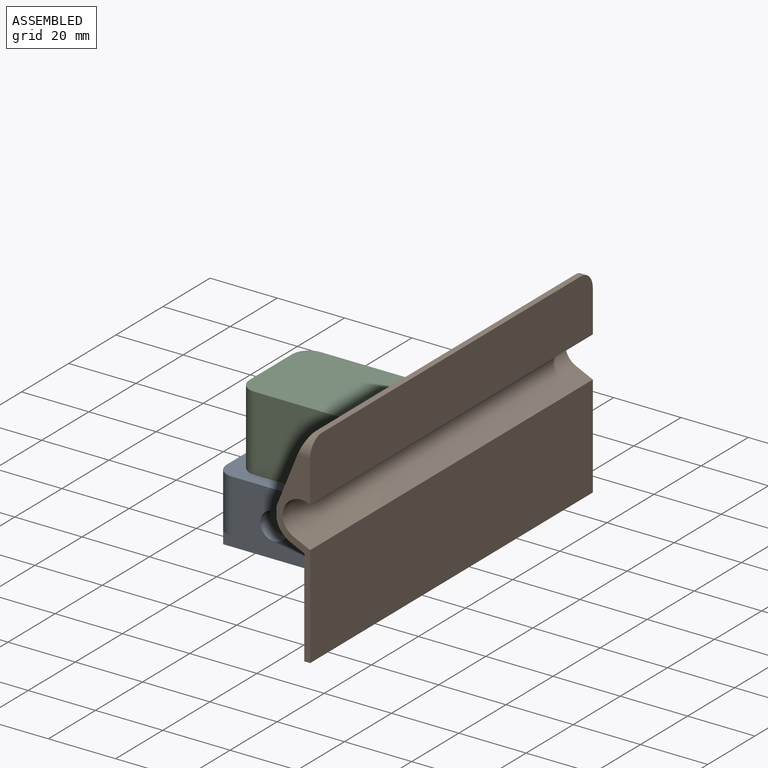
[diagram: assembled view]
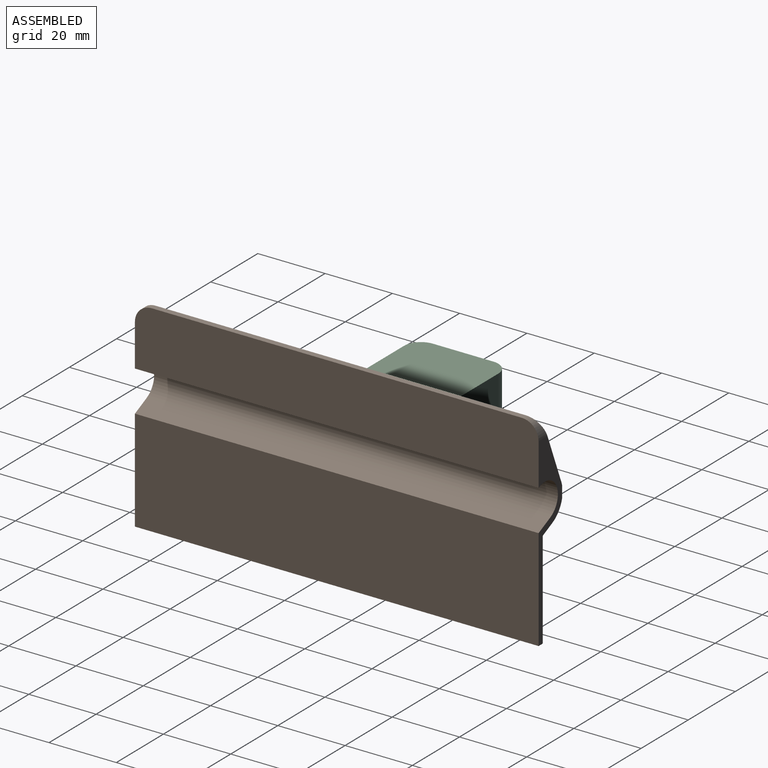
[diagram: assembled view, second angle]
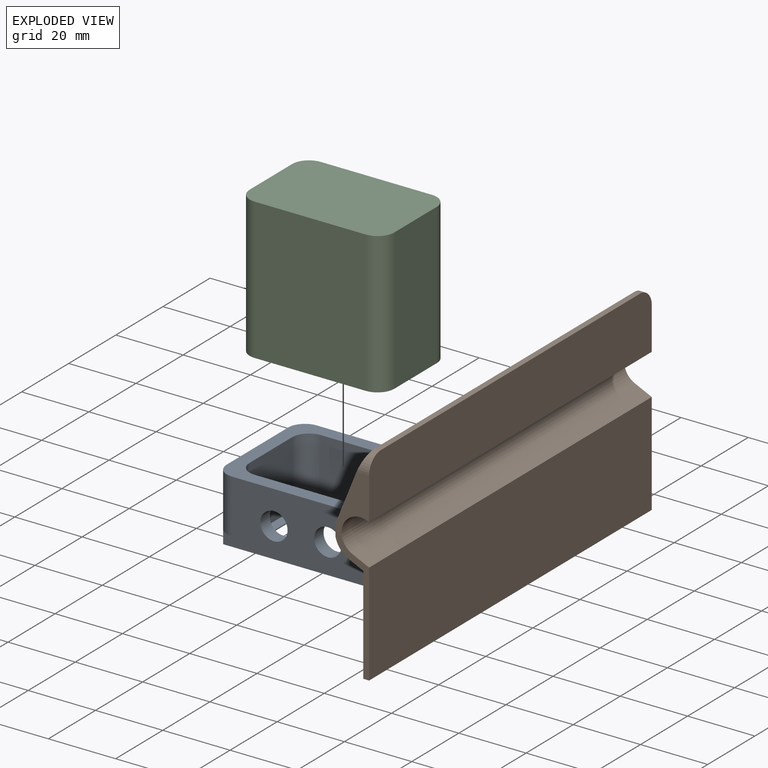
[diagram: exploded view]
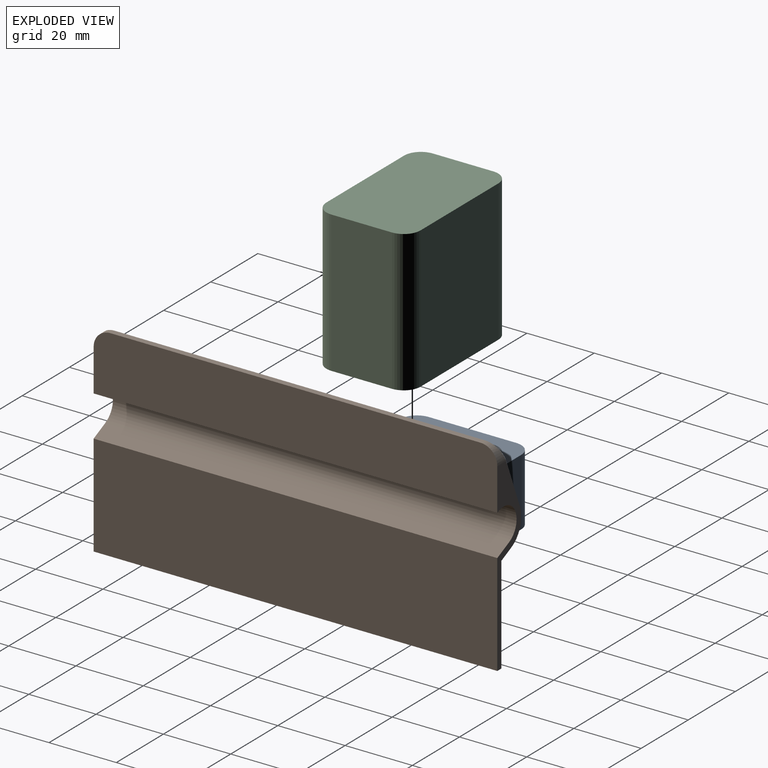
[diagram: exploded view, second angle]
ASSEMBLY  parts=3 mates=2
PART A: 35 faces, bbox 51x36x20 mm
  f0: plane 26x16mm, normal (1,0,0), area 312.9mm2, adj f1,f2,f27,f30,f31,f32
  f1: cylinder r=5mm len=16mm, axis (0,0,-1), area 125.7mm2, adj f0,f17,f27,f30
  f2: cylinder r=5mm len=20mm, axis (0,0,-1), area 138.5mm2, adj f0,f5,f14,f27,f30,f33
  f3: plane 43x4mm, normal (0,-1,0), area 172mm2, adj f4,f5,f30,f34
  f4: cylinder r=5mm len=20mm, axis (0,0,-1), area 138.5mm2, adj f3,f5,f16,f17,f27,f30
  f5: plane 49x34mm, normal (0,0,-1), area 847.1mm2, adj f2,f3,f4,f7,f8,f9,f10,f11
  f6: plane 43x28mm, normal (0,0,1), area 376.3mm2, adj f7,f8,f9,f10,f11,f12,f13,f18
  f7: cylinder r=3mm len=3mm, axis (0,0,-1), area 1.4mm2, adj f5,f6,f8,f18
  f8: plane 31x0.3mm, normal (0,-1,0), area 9.3mm2, adj f5,f6,f7,f9
  f9: cylinder r=3mm len=3mm, axis (0,0,-1), area 1.4mm2, adj f5,f6,f8,f10
  f10: plane 16x0.3mm, normal (-1,0,0), area 4.8mm2, adj f5,f6,f9,f11
  f11: cylinder r=3mm len=3mm, axis (0,0,-1), area 1.4mm2, adj f5,f6,f10,f12
  f12: plane 31x0.3mm, normal (0,1,0), area 9.3mm2, adj f5,f6,f11,f13
  f13: cylinder r=3mm len=3mm, axis (0,0,-1), area 1.4mm2, adj f5,f6,f12,f18
  f14: plane 41x20mm, normal (0,1,0), area 820mm2, adj f2,f5,f15,f27
  f15: cylinder r=5mm len=20mm, axis (0,0,-1), area 157.1mm2, adj f5,f14,f16,f27
  f16: plane 26x20mm, normal (-1,0,0), area 520mm2, adj f4,f5,f15,f27
  f17: plane 41x16mm, normal (0,-1,0), area 552.9mm2, adj f1,f4,f27,f28,f29,f30
  f18: plane 16x0.3mm, normal (1,0,0), area 4.8mm2, adj f5,f6,f7,f13
  f19: cylinder r=5mm len=19.7mm, axis (0,0,-1), area 136mm2, adj f6,f20,f26,f27,f32
  f20: plane 19.7x18mm, normal (-1,0,0), area 287mm2, adj f6,f19,f21,f27,f31,f32
  f21: cylinder r=5mm len=19.7mm, axis (0,0,-1), area 136mm2, adj f6,f20,f22,f27,f31
  f22: plane 33x19.7mm, normal (0,1,0), area 547mm2, adj f6,f21,f23,f27,f28,f29
  f23: cylinder r=5mm len=19.7mm, axis (0,0,-1), area 154.7mm2, adj f6,f22,f24,f27
  f24: plane 19.7x18mm, normal (1,0,0), area 354.6mm2, adj f6,f23,f25,f27
  f25: cylinder r=5mm len=19.7mm, axis (0,0,-1), area 154.7mm2, adj f6,f24,f26,f27
  f26: plane 33x19.7mm, normal (0,-1,0), area 650.1mm2, adj f6,f19,f25,f27
  f27: plane 51x36mm, normal (0,0,1), area 632mm2, adj f0,f1,f2,f4,f14,f15,f16,f17
  f28: cylinder r=4.05mm len=8.1mm, axis (0,-1,0), area 101.8mm2, adj f17,f22
  f29: cylinder r=4.05mm len=8.1mm, axis (0,-1,0), area 101.8mm2, adj f17,f22
  f30: plane 50x35mm, normal (0,0,-1), area 161.2mm2, adj f0,f1,f2,f3,f4,f17,f33,f34
  f31: cylinder r=4.05mm len=8.1mm, axis (1,0,0), area 107.3mm2, adj f0,f20,f21
  f32: cylinder r=4.05mm len=8.1mm, axis (1,0,0), area 107.3mm2, adj f0,f19,f20
  f33: plane 28x4mm, normal (1,0,0), area 112mm2, adj f2,f5,f30,f34
  f34: cylinder r=5mm len=5mm, axis (0,0,1), area 31.4mm2, adj f3,f5,f30,f33
PART B: 31 faces, bbox 120x60x10.7 mm
  f0: plane 46x28.95mm, normal (0,0,-1), area 1331.5mm2, adj f3,f6,f9,f17
  f1: plane 46x28.95mm, normal (0,0,-1), area 1331.5mm2, adj f2,f5,f9,f17
  f2: plane 30.84x9mm, normal (-1,0,0), area 196.6mm2, adj f1,f4,f9,f17,f19,f22,f23,f24
  f3: plane 30.84x9mm, normal (1,0,0), area 196.6mm2, adj f0,f4,f9,f17,f19,f22,f23,f24
  f4: plane 28x2mm, normal (0,-1,0), area 56mm2, adj f2,f3,f23,f24
  f5: plane 55x10mm, normal (-1,0,0), area 163.7mm2, adj f1,f7,f8,f9,f11,f12,f13,f14
  f6: plane 55x10mm, normal (1,0,0), area 163.7mm2, adj f0,f7,f8,f9,f11,f12,f13,f14
  f7: plane 120x30.34mm, normal (0,0,1), area 3640.4mm2, adj f5,f6,f9,f12
  f8: plane 120x3.36mm, normal (0,0,-1), area 403.5mm2, adj f5,f6,f15,f18
  f9: plane 120x8.75mm, normal (0,1,0), area 405.7mm2, adj f0,f1,f2,f3,f5,f6,f7,f23
  f10: plane 110x1.75mm, normal (0,-1,0), area 192.2mm2, adj f11,f16,f20,f21
  f11: plane 120x17.53mm, normal (0,0,1), area 2092.4mm2, adj f5,f6,f10,f13,f20,f21
  f12: plane 120x5.02mm, normal (0,-0.91,0.42), area 664.1mm2, adj f5,f6,f7,f14
  f13: plane 120x0.37mm, normal (0,0.91,-0.42), area 48.5mm2, adj f5,f6,f11,f14
  f14: cylinder r=5.5mm len=120mm, axis (1,0,0), area 2073.5mm2, adj f5,f6,f12,f13
  f15: cylinder r=7.5mm len=120mm, axis (1,0,0), area 189.2mm2, adj f5,f6,f8,f16
  f16: plane 120x19.17mm, normal (0,-0.37,-0.93), area 2469.3mm2, adj f5,f6,f10,f15,f20,f21
  f17: plane 120x4.11mm, normal (0,0.91,-0.42), area 419.2mm2, adj f0,f1,f2,f3,f5,f6,f18,f29
  f18: cylinder r=7.5mm len=120mm, axis (1,0,0), area 817.5mm2, adj f5,f6,f8,f17
  f19: plane 28x4mm, normal (0,1,0), area 112mm2, adj f2,f3,f22,f24
  f20: cylinder r=5mm len=5mm, axis (0,0,-1), area 19.5mm2, adj f5,f10,f11,f16
  f21: cylinder r=5mm len=5mm, axis (0,0,1), area 19.5mm2, adj f6,f10,f11,f16
  f22: plane 28x8.79mm, normal (0,0,-1), area 246mm2, adj f2,f3,f19,f30
  f23: plane 28x4mm, normal (0,0,-1), area 112mm2, adj f2,f3,f4,f9
  f24: plane 28x16mm, normal (0,0,-1), area 348.5mm2, adj f2,f3,f4,f19,f26,f28
  f25: plane 7.96x7.96mm, normal (0,0,-1), area 49.8mm2, adj f26
  f26: cylinder r=3.98mm len=7.96mm, axis (0,0,1), area 100mm2, adj f24,f25
  f27: plane 7.96x7.96mm, normal (0,0,-1), area 49.8mm2, adj f28
  f28: cylinder r=3.98mm len=7.96mm, axis (0,0,1), area 100mm2, adj f24,f27
  f29: plane 28x0.01mm, normal (0,-0.71,-0.71), area 0.4mm2, adj f2,f3,f17,f30
  f30: plane 28x4.93mm, normal (0,-0.92,-0.38), area 149.4mm2, adj f2,f3,f22,f29
PART C: 10 faces, bbox 43x28x42 mm
  f0: plane 42x18mm, normal (1,0,0), area 756mm2, adj f1,f7,f8,f9
  f1: cylinder r=5mm len=42mm, axis (0,0,-1), area 329.9mm2, adj f0,f2,f8,f9
  f2: plane 42x33mm, normal (0,1,0), area 1386mm2, adj f1,f3,f8,f9
  f3: cylinder r=5mm len=42mm, axis (0,0,-1), area 329.9mm2, adj f2,f4,f8,f9
  f4: plane 42x18mm, normal (-1,0,0), area 756mm2, adj f3,f5,f8,f9
  f5: cylinder r=5mm len=42mm, axis (0,0,-1), area 329.9mm2, adj f4,f6,f8,f9
  f6: plane 42x33mm, normal (0,-1,0), area 1386mm2, adj f5,f7,f8,f9
  f7: cylinder r=5mm len=42mm, axis (0,0,-1), area 329.9mm2, adj f0,f6,f8,f9
  f8: plane 43x28mm, normal (0,0,1), area 1182.5mm2, adj f0,f1,f2,f3,f4,f5,f6,f7
  f9: plane 43x28mm, normal (0,0,-1), area 1182.5mm2, adj f0,f1,f2,f3,f4,f5,f6,f7
PLACE A t=(37.75,8.41,-4.75)mm
PLACE B rot(axis=(-0.58,0.58,-0.58),120deg) t=(59.9,8.45,25.25)mm
PLACE C t=(37.75,8.41,-4.45)mm
MATE cylindrical A.f32 <-> B.f26  axis (1,0,0) through (63.25,16.41,5.25)mm
MATE slider C.f9 <-> A.f6  axis (0,0,-1) through (16.25,8.41,-4.45)mm
